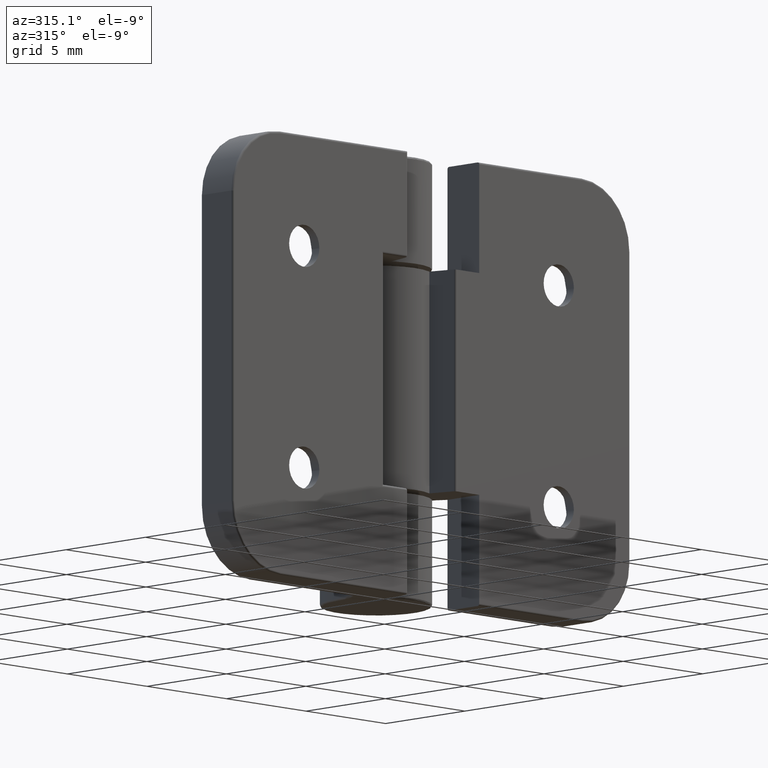
[diagram: clean part render]
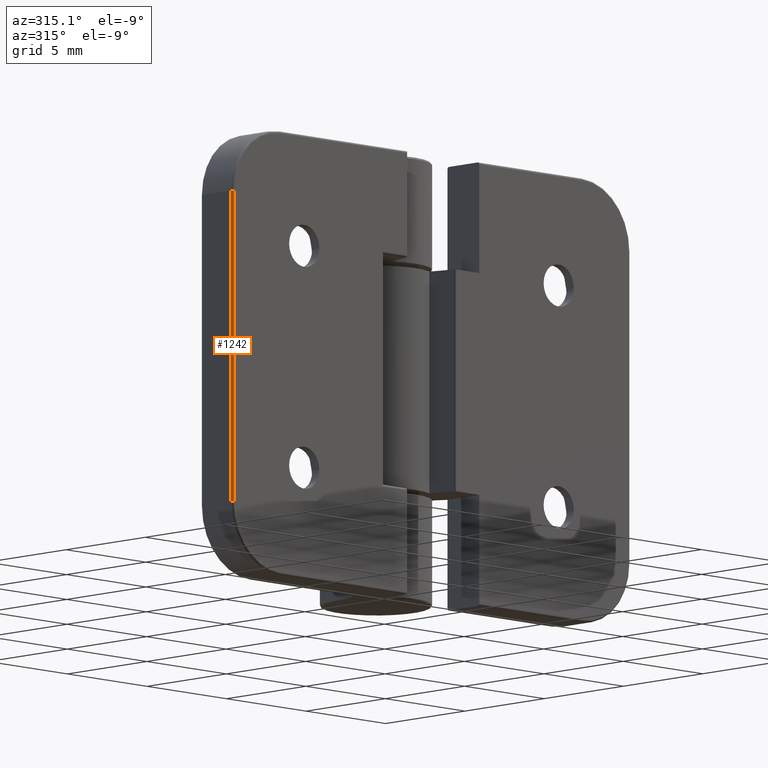
[diagram: same view with one face highlighted and labeled with its STEP entity id]
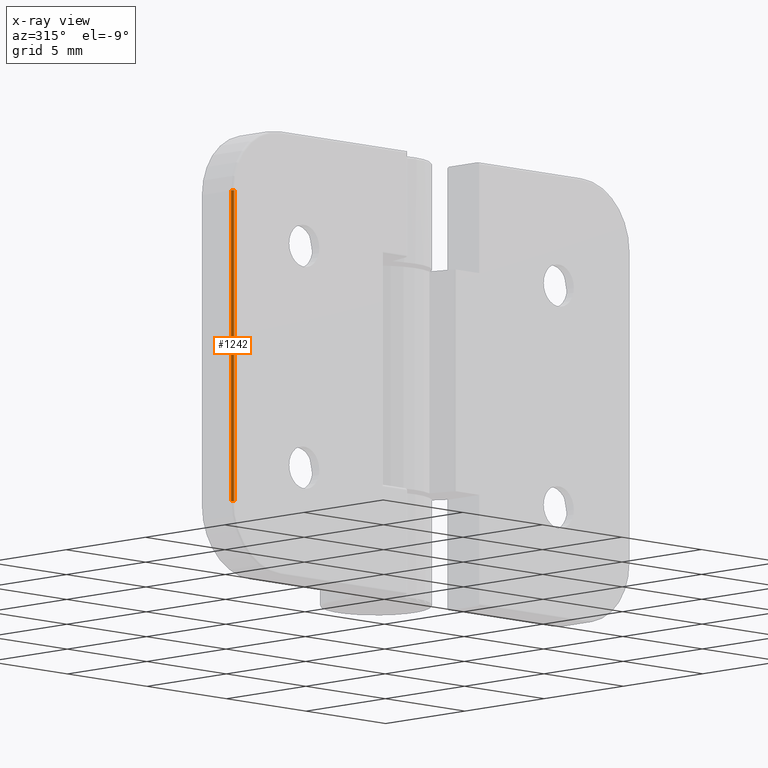
[diagram: x-ray of the same camera — body ghosted, the highlighted face saturated]
A machine part, auxiliary view. The second image highlights one B-rep face of the part: STEP entity #1242.
The next image is the same camera in x-ray: the body ghosted, the highlighted face saturated — about 0% of this face is hidden behind the body in this view.
In plain terms, the highlighted cylindrical surface (edge-blend (fillet) strip) has radius 0.1 mm, axis along (0, 0, 1).
Its self-contained STEP definition (entity closure, byte-faithful):
#124=FACE_OUTER_BOUND('',#207,.T.);
#207=EDGE_LOOP('',(#899,#900,#901,#902));
#325=LINE('',#2090,#401);
#326=LINE('',#2091,#402);
#401=VECTOR('',#1600,14.);
#402=VECTOR('',#1601,14.);
#474=CIRCLE('',#1350,0.100000000000003);
#477=CIRCLE('',#1354,0.1);
#582=VERTEX_POINT('',#2081);
#583=VERTEX_POINT('',#2082);
#584=VERTEX_POINT('',#2087);
#585=VERTEX_POINT('',#2088);
#706=EDGE_CURVE('',#582,#583,#474,.T.);
#709=EDGE_CURVE('',#584,#585,#477,.T.);
#710=EDGE_CURVE('',#585,#583,#325,.T.);
#711=EDGE_CURVE('',#582,#584,#326,.T.);
#899=ORIENTED_EDGE('',*,*,#709,.T.);
#900=ORIENTED_EDGE('',*,*,#710,.T.);
#901=ORIENTED_EDGE('',*,*,#706,.F.);
#902=ORIENTED_EDGE('',*,*,#711,.T.);
#1197=CYLINDRICAL_SURFACE('',#1353,0.1);
#1242=ADVANCED_FACE('',(#124),#1197,.T.);
#1350=AXIS2_PLACEMENT_3D('',#2083,#1590,#1591);
#1353=AXIS2_PLACEMENT_3D('',#2086,#1596,#1597);
#1354=AXIS2_PLACEMENT_3D('',#2089,#1598,#1599);
#1590=DIRECTION('center_axis',(0.,0.,-1.));
#1591=DIRECTION('ref_axis',(0.,-1.,0.));
#1596=DIRECTION('center_axis',(0.,0.,1.));
#1597=DIRECTION('ref_axis',(-0.707106781186539,-0.707106781186556,0.));
#1598=DIRECTION('center_axis',(0.,0.,-1.));
#1599=DIRECTION('ref_axis',(0.,-1.,0.));
#1600=DIRECTION('',(0.,0.,-1.));
#1601=DIRECTION('',(0.,0.,1.));
#2081=CARTESIAN_POINT('',(-12.4,-5.45333979993436E-16,-7.));
#2082=CARTESIAN_POINT('',(-12.5,0.100000000000003,-7.));
#2083=CARTESIAN_POINT('Origin',(-12.4,0.100000000000003,-7.));
#2086=CARTESIAN_POINT('Origin',(-12.4,0.0999999999999995,0.));
#2087=CARTESIAN_POINT('',(-12.4,-5.55111512312578E-16,7.));
#2088=CARTESIAN_POINT('',(-12.5,0.0999999999999995,7.));
#2089=CARTESIAN_POINT('Origin',(-12.4,0.0999999999999995,7.));
#2090=CARTESIAN_POINT('',(-12.5,0.0999999999999994,0.));
#2091=CARTESIAN_POINT('',(-12.4,-5.55111512312578E-16,0.));